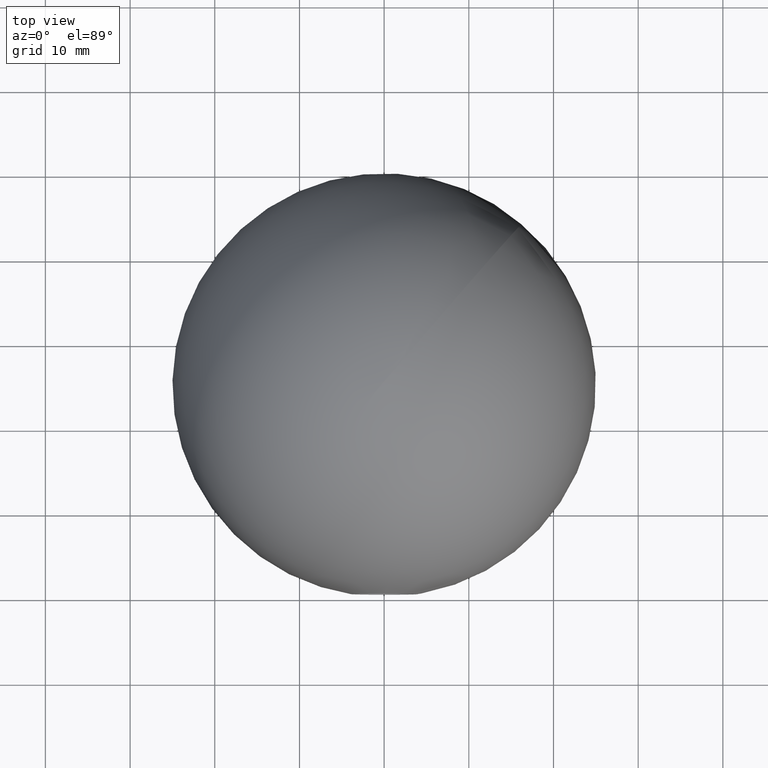
[diagram: clean part render]
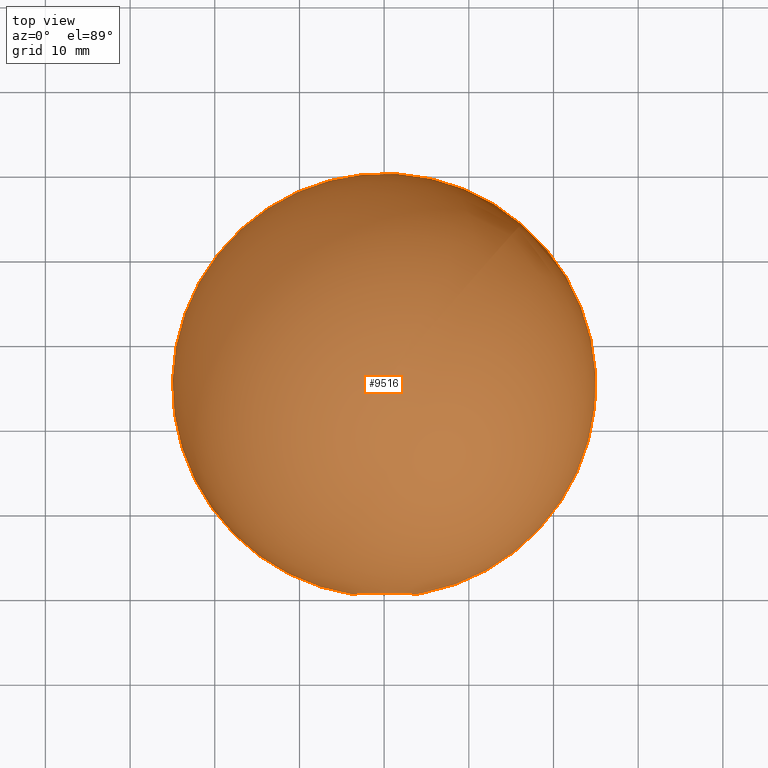
[diagram: same view with one face highlighted and labeled with its STEP entity id]
A machine part, top view. The second image highlights one B-rep face of the part: STEP entity #9516.
In plain terms, the highlighted spherical surface has radius 25 mm.
Its self-contained STEP definition (entity closure, byte-faithful):
#1520 = EDGE_CURVE ( 'NONE', #7608, #7608, #4848, .T. ) ;
#2363 = FACE_OUTER_BOUND ( 'NONE', #6873, .T. ) ;
#4134 = CARTESIAN_POINT ( 'NONE',  ( -1.394373279736362900E-031, 25.00000000000000000, 0.0000000000000000000 ) ) ;
#4301 = DIRECTION ( 'NONE',  ( -0.0000000000000000000, 0.0000000000000000000, -1.000000000000000000 ) ) ;
#4393 = AXIS2_PLACEMENT_3D ( 'NONE', #4134, #4301, #8518 ) ;
#4848 = CIRCLE ( 'NONE', #14064, 3.889830273906885100 ) ;
#4924 = SPHERICAL_SURFACE ( 'NONE', #4393, 25.00000000000000000 ) ;
#6873 = EDGE_LOOP ( 'NONE', ( #13769 ) ) ;
#7608 = VERTEX_POINT ( 'NONE', #12202 ) ;
#8518 = DIRECTION ( 'NONE',  ( -1.000000000000000000, -1.387778780781445700E-016, 0.0000000000000000000 ) ) ;
#8646 = DIRECTION ( 'NONE',  ( -0.0000000000000000000, 1.000000000000000000, -0.0000000000000000000 ) ) ;
#9516 = ADVANCED_FACE ( 'NONE', ( #2363 ), #4924, .T. ) ;
#11969 = CARTESIAN_POINT ( 'NONE',  ( -1.394373279736362900E-031, 0.3044696262623735100, 0.0000000000000000000 ) ) ;
#12202 = CARTESIAN_POINT ( 'NONE',  ( -1.394373279736362900E-031, 0.3044696262623735100, 3.889830273906885100 ) ) ;
#13076 = DIRECTION ( 'NONE',  ( 0.0000000000000000000, 0.0000000000000000000, 1.000000000000000000 ) ) ;
#13769 = ORIENTED_EDGE ( 'NONE', *, *, #1520, .T. ) ;
#14064 = AXIS2_PLACEMENT_3D ( 'NONE', #11969, #8646, #13076 ) ;